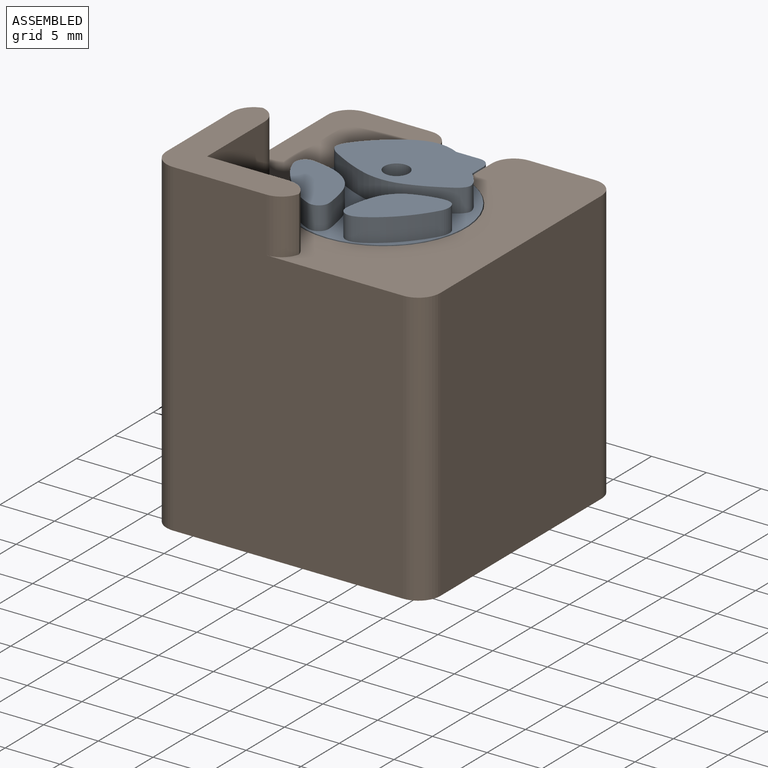
[diagram: assembled view]
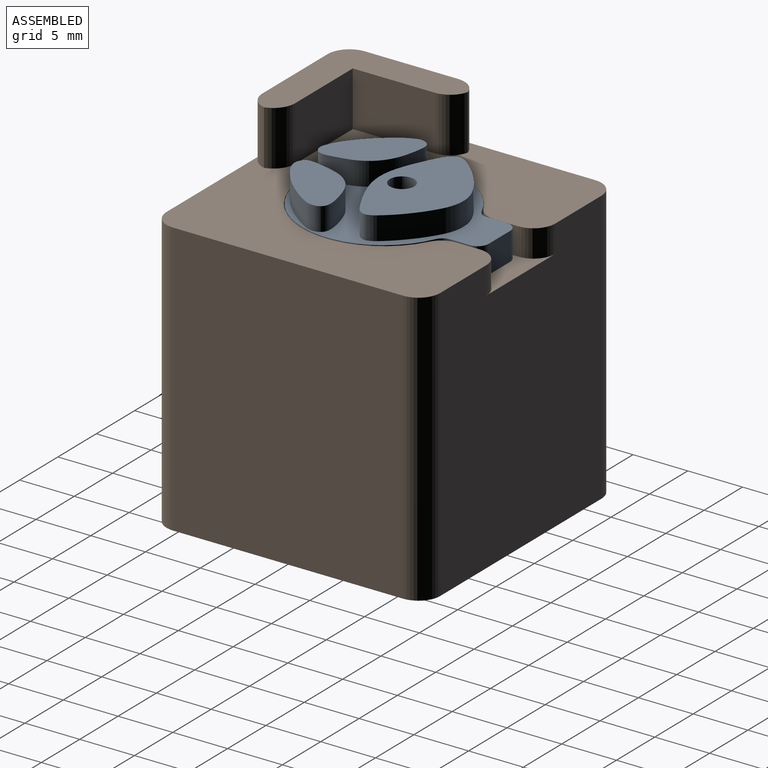
[diagram: assembled view, second angle]
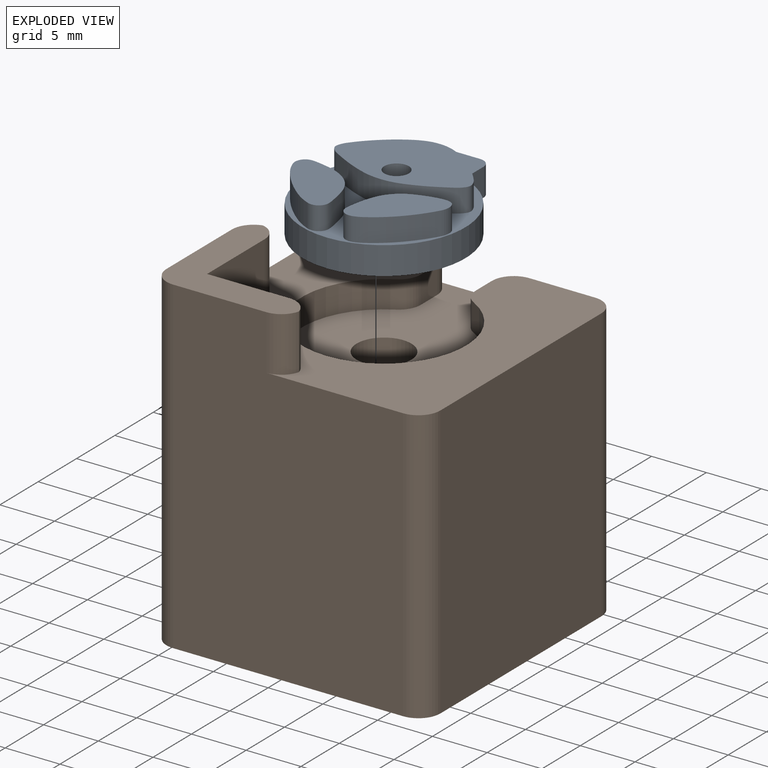
[diagram: exploded view]
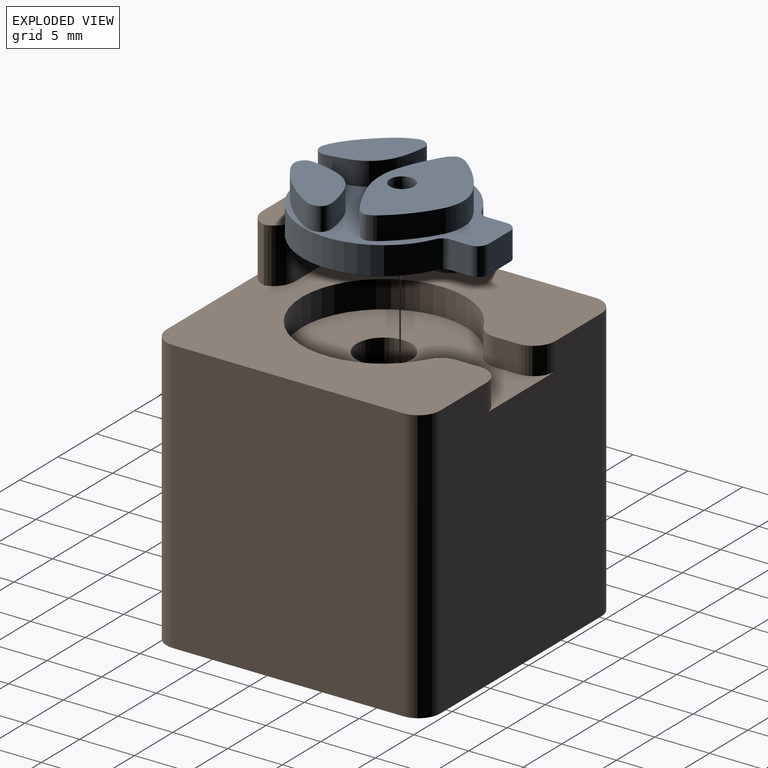
[diagram: exploded view, second angle]
ASSEMBLY  parts=2 mates=2
PART A: 82 faces, bbox 14.9x18x4.7 mm
  f0: cylinder r=4.69mm len=2.13mm, axis (0,0,-1), area 1mm2, adj f1,f23,f24,f25
  f1: cylinder r=2.71mm len=2.13mm, axis (0,0,-1), area 0.9mm2, adj f0,f2,f24,f25
  f2: cylinder r=4.73mm len=2.13mm, axis (0,0,-1), area 2.7mm2, adj f1,f3,f24,f25
  f3: cylinder r=11.51mm len=2.13mm, axis (0,0,-1), area 3.4mm2, adj f2,f4,f24,f25
  f4: cylinder r=13.11mm len=2.13mm, axis (0,0,-1), area 3.7mm2, adj f3,f5,f24,f25
  f5: cylinder r=11.59mm len=2.13mm, axis (0,0,-1), area 3.6mm2, adj f4,f6,f24,f25
  f6: cylinder r=2.02mm len=2.13mm, axis (0,0,-1), area 1.7mm2, adj f5,f7,f24,f25
  f7: cylinder r=0.71mm len=2.13mm, axis (0,0,-1), area 1.3mm2, adj f6,f8,f24,f25
  f8: cylinder r=2.08mm len=2.13mm, axis (0,0,-1), area 1.9mm2, adj f7,f9,f24,f25
  f9: cylinder r=26.94mm len=2.13mm, axis (0,0,-1), area 3.7mm2, adj f8,f10,f24,f25
  f10: cylinder r=13.71mm len=2.13mm, axis (0,0,-1), area 4.7mm2, adj f9,f11,f24,f25
  f11: cylinder r=6mm len=2.13mm, axis (0,0,-1), area 3.8mm2, adj f10,f12,f24,f25
  f12: cylinder r=6.04mm len=2.13mm, axis (0,0,-1), area 3.9mm2, adj f11,f13,f24,f25
  f13: cylinder r=14.02mm len=2.13mm, axis (0,0,-1), area 4.8mm2, adj f12,f14,f24,f25
  f14: cylinder r=25.52mm len=2.13mm, axis (0,0,-1), area 3.6mm2, adj f13,f15,f24,f25
  f15: cylinder r=2.09mm len=2.13mm, axis (0,0,-1), area 1.9mm2, adj f14,f16,f24,f25
  f16: cylinder r=0.71mm len=2.13mm, axis (0,0,-1), area 1.3mm2, adj f15,f17,f24,f25
  f17: cylinder r=1.89mm len=2.13mm, axis (0,0,-1), area 1.7mm2, adj f16,f18,f24,f25
  f18: cylinder r=11.63mm len=2.13mm, axis (0,0,-1), area 3.5mm2, adj f17,f19,f24,f25
  f19: cylinder r=13.69mm len=2.13mm, axis (0,0,-1), area 3.7mm2, adj f18,f20,f24,f25
  f20: cylinder r=12.12mm len=2.13mm, axis (0,0,-1), area 3.4mm2, adj f19,f21,f24,f25
  f21: cylinder r=4.77mm len=2.13mm, axis (0,0,-1), area 2.7mm2, adj f20,f22,f24,f25
  f22: cylinder r=2.99mm len=2.13mm, axis (0,0,-1), area 0.9mm2, adj f21,f23,f24,f25
  f23: cylinder r=4.75mm len=2.13mm, axis (0,0,-1), area 1mm2, adj f0,f22,f24,f25
  f24: plane 12.32x7.64mm, normal (0,0,1), area 60.5mm2, adj f0,f1,f2,f3,f4,f5,f6,f7
  f25: plane 17.98x14.88mm, normal (0,0,1), area 76.1mm2, adj f0,f1,f2,f3,f4,f5,f6,f7
  f26: cylinder r=11.3mm len=2.13mm, axis (0,0,-1), area 2mm2, adj f25,f27,f49,f50
  f27: cylinder r=1.23mm len=2.13mm, axis (0,0,-1), area 1.1mm2, adj f25,f26,f28,f50
  f28: cylinder r=0.75mm len=2.13mm, axis (0,0,-1), area 0.7mm2, adj f25,f27,f29,f50
  f29: cylinder r=0.97mm len=2.13mm, axis (0,0,-1), area 0.8mm2, adj f25,f28,f30,f50
  f30: cylinder r=1.04mm len=2.13mm, axis (0,0,-1), area 0.8mm2, adj f25,f29,f31,f50
  f31: cylinder r=0.95mm len=2.13mm, axis (0,0,-1), area 0.8mm2, adj f25,f30,f32,f50
  f32: cylinder r=5.1mm len=2.13mm, axis (0,0,-1), area 3.3mm2, adj f25,f31,f33,f50
  f33: cylinder r=12.94mm len=2.13mm, axis (0,0,-1), area 4.2mm2, adj f25,f32,f34,f50
  f34: cylinder r=13.24mm len=2.13mm, axis (0,0,-1), area 4.3mm2, adj f25,f33,f35,f50
  f35: cylinder r=6.4mm len=2.13mm, axis (0,0,-1), area 3.6mm2, adj f25,f34,f36,f50
  f36: cylinder r=1.19mm len=2.13mm, axis (0,0,-1), area 1.1mm2, adj f25,f35,f37,f50
  f37: cylinder r=0.94mm len=2.13mm, axis (0,0,-1), area 1mm2, adj f25,f36,f38,f50
  f38: cylinder r=0.87mm len=2.13mm, axis (0,0,-1), area 1mm2, adj f25,f37,f39,f50
  f39: cylinder r=0.97mm len=2.13mm, axis (0,0,-1), area 1mm2, adj f25,f38,f40,f50
  f40: cylinder r=3.15mm len=2.13mm, axis (0,0,-1), area 1.1mm2, adj f25,f39,f41,f50
  f41: cylinder r=19.49mm len=2.13mm, axis (0,0,-1), area 1.7mm2, adj f25,f40,f42,f50
  f42: cylinder r=18.94mm len=2.13mm, axis (0,0,-1), area 1.7mm2, adj f25,f41,f43,f50
  f43: cylinder r=4.71mm len=2.13mm, axis (0,0,-1), area 1.2mm2, adj f25,f42,f44,f50
  f44: cylinder r=4mm len=2.13mm, axis (0,0,-1), area 1.6mm2, adj f25,f43,f45,f50
  f45: cylinder r=3.92mm len=2.13mm, axis (0,0,-1), area 1.6mm2, adj f25,f44,f46,f50
  f46: cylinder r=3.98mm len=2.13mm, axis (0,0,-1), area 1.6mm2, adj f25,f45,f47,f50
  f47: cylinder r=4.27mm len=2.13mm, axis (0,0,-1), area 1.6mm2, adj f25,f46,f48,f50
  f48: cylinder r=4.84mm len=2.13mm, axis (0,0,-1), area 1.7mm2, adj f25,f47,f49,f50
  f49: cylinder r=10.82mm len=2.13mm, axis (0,0,-1), area 2.1mm2, adj f25,f26,f48,f50
  f50: plane 6.43x6.29mm, normal (0,0,1), area 24.3mm2, adj f26,f27,f28,f29,f30,f31,f32,f33
  f51: cylinder r=1.17mm len=2.13mm, axis (0,0,-1), area 1.1mm2, adj f25,f52,f70,f71
  f52: cylinder r=4.32mm len=2.13mm, axis (0,0,-1), area 1.5mm2, adj f25,f51,f53,f71
  f53: cylinder r=9.91mm len=2.13mm, axis (0,0,-1), area 4.3mm2, adj f25,f52,f54,f71
  f54: cylinder r=3.65mm len=2.13mm, axis (0,0,-1), area 3.3mm2, adj f25,f53,f55,f71
  f55: cylinder r=3.73mm len=2.13mm, axis (0,0,-1), area 3.4mm2, adj f25,f54,f56,f71
  f56: cylinder r=10.64mm len=2.13mm, axis (0,0,-1), area 4.4mm2, adj f25,f55,f57,f71
  f57: cylinder r=10.93mm len=2.13mm, axis (0,0,-1), area 1.1mm2, adj f25,f56,f58,f71
  f58: cylinder r=1.33mm len=2.13mm, axis (0,0,-1), area 0.6mm2, adj f25,f57,f59,f71
  f59: cylinder r=0.65mm len=2.13mm, axis (0,0,-1), area 0.5mm2, adj f25,f58,f60,f71
  f60: cylinder r=1.08mm len=2.13mm, axis (0,0,-1), area 0.6mm2, adj f25,f59,f61,f71
  f61: cylinder r=0.87mm len=2.13mm, axis (0,0,-1), area 1.1mm2, adj f25,f60,f62,f71
  f62: cylinder r=1.2mm len=2.13mm, axis (0,0,-1), area 1.2mm2, adj f25,f61,f63,f71
  f63: cylinder r=2.74mm len=2.13mm, axis (0,0,-1), area 1.7mm2, adj f25,f62,f64,f71
  f64: cylinder r=11.42mm len=2.13mm, axis (0,0,-1), area 2.5mm2, adj f25,f63,f65,f71
  f65: cylinder r=10.39mm len=2.13mm, axis (0,0,-1), area 3.5mm2, adj f25,f64,f66,f71
  f66: cylinder r=13.13mm len=2.13mm, axis (0,0,-1), area 3.7mm2, adj f25,f65,f67,f71
  f67: cylinder r=11.88mm len=2.13mm, axis (0,0,-1), area 3.2mm2, adj f25,f66,f68,f71
  f68: cylinder r=1.52mm len=2.13mm, axis (0,0,-1), area 1.9mm2, adj f25,f67,f69,f71
  f69: cylinder r=1.09mm len=2.13mm, axis (0,0,-1), area 1mm2, adj f25,f68,f70,f71
  f70: cylinder r=0.69mm len=2.13mm, axis (0,0,-1), area 0.9mm2, adj f25,f51,f69,f71
  f71: plane 6.38x6.3mm, normal (0,0,1), area 24.2mm2, adj f51,f52,f53,f54,f55,f56,f57,f58
  f72: cylinder r=7.44mm len=14.88mm, axis (0,0,1), area 103.4mm2, adj f25,f73,f80,f81
  f73: plane 17.98x14.88mm, normal (0,0,-1), area 185.1mm2, adj f72,f74,f75,f76,f77,f78,f79,f80
  f74: cylinder r=1.12mm len=4.68mm, axis (0,0,1), area 33mm2, adj f24,f73
  f75: plane 2.8x2.55mm, normal (0,1,0), area 7.1mm2, adj f25,f73,f78,f79
  f76: plane 2.55x1.82mm, normal (-1,0,0), area 4.6mm2, adj f25,f73,f78,f80
  f77: plane 2.55x1.82mm, normal (1,0,0), area 4.6mm2, adj f25,f73,f79,f81
  f78: cylinder r=1mm len=2.55mm, axis (0,0,-1), area 4mm2, adj f25,f73,f75,f76
  f79: cylinder r=1mm len=2.55mm, axis (0,0,-1), area 4mm2, adj f25,f73,f75,f77
  f80: cylinder r=1mm len=2.55mm, axis (0,0,1), area 2.9mm2, adj f25,f72,f73,f76
  f81: cylinder r=1mm len=2.55mm, axis (0,0,1), area 2.9mm2, adj f25,f72,f73,f77
PART B: 26 faces, bbox 25x25x30 mm
  f0: plane 25x25mm, normal (0,0,1), area 355.1mm2, adj f2,f3,f4,f5,f7,f8,f9,f11
  f1: cylinder r=2.5mm len=22.5mm, axis (0,0,-1), area 353.4mm2, adj f6,f10
  f2: plane 25x21mm, normal (0,1,0), area 502.5mm2, adj f0,f6,f10,f18,f19,f24,f25
  f3: plane 30x21mm, normal (-1,0,0), area 567.5mm2, adj f0,f6,f13,f16,f22,f25
  f4: plane 30x21mm, normal (0,-1,0), area 567.5mm2, adj f0,f6,f13,f14,f22,f23
  f5: plane 25x21mm, normal (1,0,0), area 525mm2, adj f0,f6,f23,f24
  f6: plane 25x25mm, normal (0,0,-1), area 601.9mm2, adj f1,f2,f3,f4,f5,f22,f23,f24
  f7: plane 2.5x2.13mm, normal (-1,0,0), area 5.3mm2, adj f0,f10,f18,f21
  f8: plane 2.5x2.13mm, normal (1,0,0), area 5.3mm2, adj f0,f10,f19,f20
  f9: cylinder r=7.5mm len=15mm, axis (0,0,1), area 99.3mm2, adj f0,f10,f20,f21
  f10: plane 20x15mm, normal (0,0,1), area 185mm2, adj f1,f2,f7,f8,f9,f18,f19,f20
  f11: plane 7.5x5mm, normal (0,1,0), area 37.5mm2, adj f0,f12,f13,f15
  f12: plane 7.5x5mm, normal (1,0,0), area 37.5mm2, adj f0,f11,f13,f17
  f13: plane 12.44x12.44mm, normal (0,0,1), area 61.8mm2, adj f3,f4,f11,f12,f14,f15,f16,f17
  f14: cylinder r=2mm len=5mm, axis (0,0,1), area 13.2mm2, adj f0,f4,f13,f15
  f15: cylinder r=2mm len=5mm, axis (0,0,-1), area 13.2mm2, adj f0,f11,f13,f14
  f16: cylinder r=2mm len=5mm, axis (0,0,1), area 13.2mm2, adj f0,f3,f13,f17
  f17: cylinder r=2mm len=5mm, axis (0,0,-1), area 13.2mm2, adj f0,f12,f13,f16
  f18: cylinder r=2mm len=2.5mm, axis (0,0,1), area 7.9mm2, adj f0,f2,f7,f10
  f19: cylinder r=2mm len=2.5mm, axis (0,0,1), area 7.9mm2, adj f0,f2,f8,f10
  f20: cylinder r=2mm len=2.5mm, axis (0,0,1), area 5.4mm2, adj f0,f8,f9,f10
  f21: cylinder r=2mm len=2.5mm, axis (0,0,1), area 5.4mm2, adj f0,f7,f9,f10
  f22: cylinder r=2mm len=30mm, axis (0,0,-1), area 94.2mm2, adj f3,f4,f6,f13
  f23: cylinder r=2mm len=25mm, axis (0,0,1), area 78.5mm2, adj f0,f4,f5,f6
  f24: cylinder r=2mm len=25mm, axis (0,0,-1), area 78.5mm2, adj f0,f2,f5,f6
  f25: cylinder r=2mm len=25mm, axis (0,0,1), area 78.5mm2, adj f0,f2,f3,f6
PLACE A rot(axis=(0,0,1),0deg) t=(-23.91,-6.52,22.16)mm
PLACE B t=(-23.43,-2.12,-2.89)mm fixed
MATE planar A.f72 <-> B.f10  axis (0,0,-1) through (-23.43,-2.12,19.61)mm
MATE cylindrical A.f72 <-> B.f1  axis (0,0,1) through (-23.43,-2.12,19.61)mm
